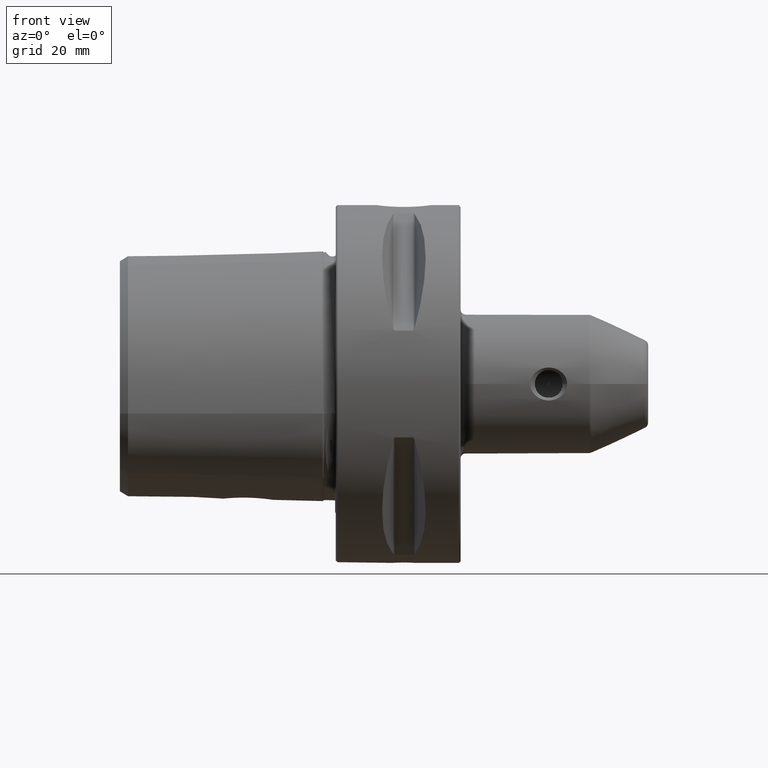
[diagram: clean part render]
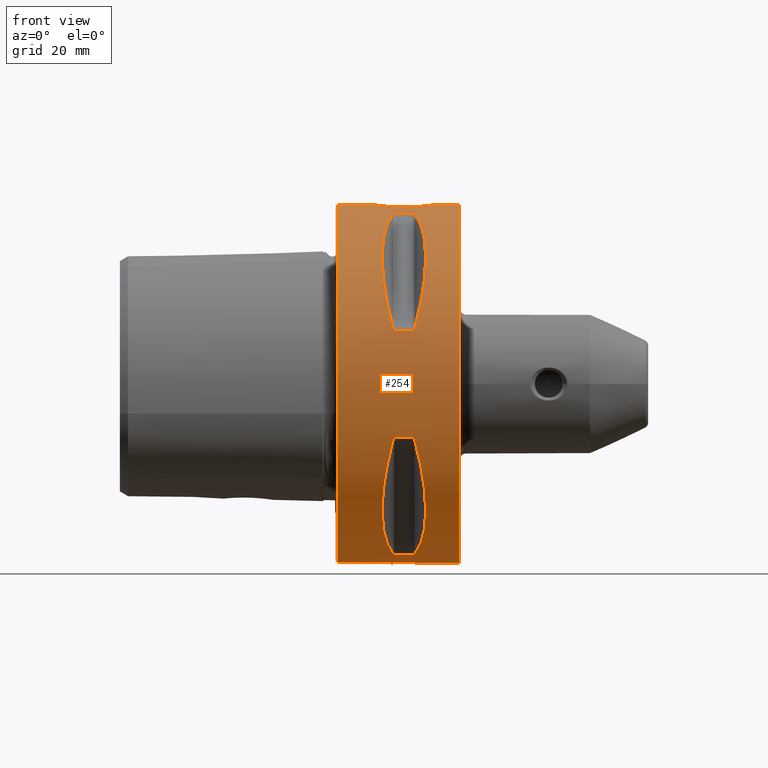
[diagram: same view with one face highlighted and labeled with its STEP entity id]
A machine part, front view. The second image highlights one B-rep face of the part: STEP entity #254.
In plain terms, the highlighted cylindrical surface (bore or boss wall) has radius 31.5 mm, axis along (1, -0, 0).
Its self-contained STEP definition (entity closure, byte-faithful):
#254 = ADVANCED_FACE( '', ( #573, #574, #575, #576, #577, #578, #579, #580 ), #581, .T. );
#573 = FACE_BOUND( '', #954, .T. );
#574 = FACE_BOUND( '', #955, .T. );
#575 = FACE_OUTER_BOUND( '', #956, .T. );
#576 = FACE_OUTER_BOUND( '', #957, .T. );
#577 = FACE_BOUND( '', #958, .T. );
#578 = FACE_BOUND( '', #959, .T. );
#579 = FACE_BOUND( '', #960, .T. );
#580 = FACE_BOUND( '', #961, .T. );
#581 = CYLINDRICAL_SURFACE( '', #962, 31.5000000000000 );
#954 = EDGE_LOOP( '', ( #1591 ) );
#955 = EDGE_LOOP( '', ( #1592 ) );
#956 = EDGE_LOOP( '', ( #1593 ) );
#957 = EDGE_LOOP( '', ( #1594 ) );
#958 = EDGE_LOOP( '', ( #1595, #1596, #1597, #1598, #1599, #1600, #1601, #1602 ) );
#959 = EDGE_LOOP( '', ( #1603, #1604, #1605, #1606, #1607, #1608, #1609, #1610 ) );
#960 = EDGE_LOOP( '', ( #1611, #1612, #1613, #1614, #1615, #1616, #1617, #1618 ) );
#961 = EDGE_LOOP( '', ( #1619, #1620, #1621, #1622, #1623, #1624, #1625, #1626 ) );
#962 = AXIS2_PLACEMENT_3D( '', #1627, #1628, #1629 );
#1591 = ORIENTED_EDGE( '', *, *, #2155, .F. );
#1592 = ORIENTED_EDGE( '', *, *, #2130, .F. );
#1593 = ORIENTED_EDGE( '', *, *, #2202, .T. );
#1594 = ORIENTED_EDGE( '', *, *, #2077, .T. );
#1595 = ORIENTED_EDGE( '', *, *, #2144, .T. );
#1596 = ORIENTED_EDGE( '', *, *, #2147, .F. );
#1597 = ORIENTED_EDGE( '', *, *, #2203, .F. );
#1598 = ORIENTED_EDGE( '', *, *, #2083, .F. );
#1599 = ORIENTED_EDGE( '', *, *, #2196, .T. );
#1600 = ORIENTED_EDGE( '', *, *, #2085, .T. );
#1601 = ORIENTED_EDGE( '', *, *, #2204, .T. );
#1602 = ORIENTED_EDGE( '', *, *, #2148, .T. );
#1603 = ORIENTED_EDGE( '', *, *, #2205, .T. );
#1604 = ORIENTED_EDGE( '', *, *, #2206, .F. );
#1605 = ORIENTED_EDGE( '', *, *, #2198, .F. );
#1606 = ORIENTED_EDGE( '', *, *, #2159, .F. );
#1607 = ORIENTED_EDGE( '', *, *, #2186, .T. );
#1608 = ORIENTED_EDGE( '', *, *, #2161, .T. );
#1609 = ORIENTED_EDGE( '', *, *, #2200, .T. );
#1610 = ORIENTED_EDGE( '', *, *, #2207, .T. );
#1611 = ORIENTED_EDGE( '', *, *, #2133, .T. );
#1612 = ORIENTED_EDGE( '', *, *, #2208, .F. );
#1613 = ORIENTED_EDGE( '', *, *, #1975, .F. );
#1614 = ORIENTED_EDGE( '', *, *, #2209, .F. );
#1615 = ORIENTED_EDGE( '', *, *, #2210, .T. );
#1616 = ORIENTED_EDGE( '', *, *, #2211, .T. );
#1617 = ORIENTED_EDGE( '', *, *, #1977, .T. );
#1618 = ORIENTED_EDGE( '', *, *, #2212, .T. );
#1619 = ORIENTED_EDGE( '', *, *, #2213, .T. );
#1620 = ORIENTED_EDGE( '', *, *, #2164, .F. );
#1621 = ORIENTED_EDGE( '', *, *, #2214, .F. );
#1622 = ORIENTED_EDGE( '', *, *, #2013, .F. );
#1623 = ORIENTED_EDGE( '', *, *, #2010, .T. );
#1624 = ORIENTED_EDGE( '', *, *, #2015, .T. );
#1625 = ORIENTED_EDGE( '', *, *, #2215, .T. );
#1626 = ORIENTED_EDGE( '', *, *, #2166, .T. );
#1627 = CARTESIAN_POINT( '', ( -0.100000000000003, 0.000000000000000, 5.40241950567483E-015 ) );
#1628 = DIRECTION( '', ( 1.00000000000000, -0.000000000000000, 6.95237284268055E-017 ) );
#1629 = DIRECTION( '', ( -6.95237284268055E-017, 0.000000000000000, 1.00000000000000 ) );
#1975 = EDGE_CURVE( '', #2295, #2297, #2298, .T. );
#1977 = EDGE_CURVE( '', #2294, #2299, #2301, .T. );
#2010 = EDGE_CURVE( '', #2358, #2359, #2360, .F. );
#2013 = EDGE_CURVE( '', #2358, #2363, #2364, .T. );
#2015 = EDGE_CURVE( '', #2359, #2365, #2367, .T. );
#2077 = EDGE_CURVE( '', #2471, #2471, #2472, .F. );
#2083 = EDGE_CURVE( '', #2480, #2482, #2483, .T. );
#2085 = EDGE_CURVE( '', #2479, #2484, #2486, .T. );
#2130 = EDGE_CURVE( '', #2540, #2540, #2541, .T. );
#2133 = EDGE_CURVE( '', #2543, #2544, #2546, .F. );
#2144 = EDGE_CURVE( '', #2560, #2561, #2563, .F. );
#2147 = EDGE_CURVE( '', #2566, #2561, #2568, .T. );
#2148 = EDGE_CURVE( '', #2565, #2560, #2569, .T. );
#2155 = EDGE_CURVE( '', #2579, #2579, #2580, .T. );
#2159 = EDGE_CURVE( '', #2583, #2585, #2586, .T. );
#2161 = EDGE_CURVE( '', #2582, #2587, #2589, .T. );
#2164 = EDGE_CURVE( '', #2592, #2594, #2595, .T. );
#2166 = EDGE_CURVE( '', #2591, #2596, #2598, .T. );
#2186 = EDGE_CURVE( '', #2583, #2582, #2625, .F. );
#2196 = EDGE_CURVE( '', #2480, #2479, #2638, .F. );
#2198 = EDGE_CURVE( '', #2585, #2640, #2641, .T. );
#2200 = EDGE_CURVE( '', #2587, #2642, #2644, .T. );
#2202 = EDGE_CURVE( '', #2646, #2646, #2647, .F. );
#2203 = EDGE_CURVE( '', #2482, #2566, #2648, .T. );
#2204 = EDGE_CURVE( '', #2484, #2565, #2649, .T. );
#2205 = EDGE_CURVE( '', #2650, #2651, #2652, .F. );
#2206 = EDGE_CURVE( '', #2640, #2651, #2653, .T. );
#2207 = EDGE_CURVE( '', #2642, #2650, #2654, .T. );
#2208 = EDGE_CURVE( '', #2297, #2544, #2655, .T. );
#2209 = EDGE_CURVE( '', #2656, #2295, #2657, .T. );
#2210 = EDGE_CURVE( '', #2656, #2658, #2659, .F. );
#2211 = EDGE_CURVE( '', #2658, #2294, #2660, .T. );
#2212 = EDGE_CURVE( '', #2299, #2543, #2661, .T. );
#2213 = EDGE_CURVE( '', #2596, #2594, #2662, .F. );
#2214 = EDGE_CURVE( '', #2363, #2592, #2663, .T. );
#2215 = EDGE_CURVE( '', #2365, #2591, #2664, .T. );
#2294 = VERTEX_POINT( '', #2755 );
#2295 = VERTEX_POINT( '', #2756 );
#2297 = VERTEX_POINT( '', #2759 );
#2298 = LINE( '', #2760, #2761 );
#2299 = VERTEX_POINT( '', #2762 );
#2301 = LINE( '', #2765, #2766 );
#2358 = VERTEX_POINT( '', #2921 );
#2359 = VERTEX_POINT( '', #2922 );
#2360 = ELLIPSE( '', #2923, 36.3730669589464, 31.5000000000000 );
#2363 = VERTEX_POINT( '', #2927 );
#2364 = B_SPLINE_CURVE_WITH_KNOTS( '', 3, ( #2928, #2929, #2930, #2931, #2932, #2933, #2934, #2935 ), .UNSPECIFIED., .F., .F., ( 4, 2, 2, 4 ), ( 3.35479553959893E-017, 0.000369746110240996, 0.000554619165361475, 0.000739492220481954 ), .UNSPECIFIED. );
#2365 = VERTEX_POINT( '', #2936 );
#2367 = B_SPLINE_CURVE_WITH_KNOTS( '', 3, ( #2939, #2940, #2941, #2942, #2943, #2944, #2945, #2946 ), .UNSPECIFIED., .F., .F., ( 4, 2, 2, 4 ), ( 3.50826111497558E-017, 0.000369746110241012, 0.000554619165361500, 0.000739492220481989 ), .UNSPECIFIED. );
#2471 = VERTEX_POINT( '', #3200 );
#2472 = CIRCLE( '', #3201, 31.5000000000000 );
#2479 = VERTEX_POINT( '', #3269 );
#2480 = VERTEX_POINT( '', #3270 );
#2482 = VERTEX_POINT( '', #3273 );
#2483 = B_SPLINE_CURVE_WITH_KNOTS( '', 3, ( #3274, #3275, #3276, #3277, #3278, #3279, #3280, #3281 ), .UNSPECIFIED., .F., .F., ( 4, 2, 2, 4 ), ( 3.50826111497558E-017, 0.000369746110241005, 0.000554619165361487, 0.000739492220481968 ), .UNSPECIFIED. );
#2484 = VERTEX_POINT( '', #3282 );
#2486 = B_SPLINE_CURVE_WITH_KNOTS( '', 3, ( #3285, #3286, #3287, #3288, #3289, #3290, #3291, #3292 ), .UNSPECIFIED., .F., .F., ( 4, 2, 2, 4 ), ( 5.86736719116179E-017, 0.000369746110241015, 0.000554619165361494, 0.000739492220481973 ), .UNSPECIFIED. );
#2540 = VERTEX_POINT( '', #3429 );
#2541 = B_SPLINE_CURVE_WITH_KNOTS( '', 3, ( #3430, #3431, #3432, #3433, #3434, #3435, #3436, #3437, #3438, #3439, #3440, #3441, #3442, #3443, #3444, #3445, #3446, #3447, #3448, #3449, #3450, #3451, #3452, #3453, #3454, #3455, #3456, #3457, #3458, #3459, #3460, #3461, #3462, #3463, #3464, #3465, #3466, #3467, #3468, #3469, #3470, #3471, #3472, #3473, #3474, #3475, #3476, #3477, #3478, #3479, #3480, #3481, #3482, #3483, #3484, #3485 ), .UNSPECIFIED., .T., .F., ( 2, 2, 2, 2, 2, 2, 2, 2, 2, 2, 2, 2, 2, 2, 2, 2, 2, 2, 2, 2, 2, 2, 2, 2, 2, 2, 2, 2, 2, 2 ), ( -0.000781720966296072, 0.000000000000000, 0.000390860483148034, 0.000781720966296067, 0.00117258144944410, 0.00156344193259213, 0.00234516289888820, 0.00312688386518427, 0.00351774434833230, 0.00390860483148034, 0.00429946531462838, 0.00469032579777641, 0.00508118628092445, 0.00547204676407248, 0.00586290724722052, 0.00625376773036855, 0.00703548869666462, 0.00781720966296070, 0.00820807014610873, 0.00859893062925677, 0.00898979111240481, 0.00938065159555284, 0.00977151207870088, 0.0101623725618489, 0.0105532330449970, 0.0109440935281450, 0.0113349540112930, 0.0117258144944411, 0.0125075354607371, 0.0128983959438852 ), .UNSPECIFIED. );
#2543 = VERTEX_POINT( '', #3487 );
#2544 = VERTEX_POINT( '', #3488 );
#2546 = ELLIPSE( '', #3491, 36.3730669589465, 31.5000000000000 );
#2560 = VERTEX_POINT( '', #3508 );
#2561 = VERTEX_POINT( '', #3509 );
#2563 = ELLIPSE( '', #3512, 36.3730669589465, 31.5000000000000 );
#2565 = VERTEX_POINT( '', #3514 );
#2566 = VERTEX_POINT( '', #3515 );
#2568 = B_SPLINE_CURVE_WITH_KNOTS( '', 3, ( #3518, #3519, #3520, #3521, #3522, #3523, #3524, #3525 ), .UNSPECIFIED., .F., .F., ( 4, 2, 2, 4 ), ( 1.73472347597681E-018, 0.000186192182164238, 0.000372384364328473, 0.000744768728656952 ), .UNSPECIFIED. );
#2569 = B_SPLINE_CURVE_WITH_KNOTS( '', 3, ( #3526, #3527, #3528, #3529, #3530, #3531, #3532, #3533 ), .UNSPECIFIED., .F., .F., ( 4, 2, 2, 4 ), ( 0.000000000000000, 0.000186192182164235, 0.000372384364328471, 0.000744768728656945 ), .UNSPECIFIED. );
#2579 = VERTEX_POINT( '', #3543 );
#2580 = B_SPLINE_CURVE_WITH_KNOTS( '', 3, ( #3544, #3545, #3546, #3547, #3548, #3549, #3550, #3551, #3552, #3553, #3554, #3555, #3556, #3557, #3558, #3559, #3560, #3561, #3562, #3563, #3564, #3565, #3566, #3567, #3568, #3569, #3570, #3571, #3572, #3573, #3574, #3575, #3576, #3577, #3578, #3579, #3580, #3581, #3582, #3583, #3584, #3585, #3586, #3587, #3588, #3589, #3590, #3591, #3592, #3593, #3594, #3595, #3596, #3597, #3598, #3599, #3600, #3601, #3602, #3603, #3604, #3605, #3606, #3607, #3608, #3609, #3610, #3611, #3612, #3613 ), .UNSPECIFIED., .T., .F., ( 2, 2, 2, 2, 2, 2, 2, 2, 2, 2, 2, 2, 2, 2, 2, 2, 2, 2, 2, 2, 2, 2, 2, 2, 2, 2, 2, 2, 2, 2, 2, 2, 2, 2, 2, 2, 2 ), ( -0.000912038958039935, 0.000000000000000, 0.000912038958039931, 0.00182407791607986, 0.00273611687411979, 0.00364815583215973, 0.00456019479019966, 0.00547223374823959, 0.00638427270627952, 0.00729631166431945, 0.00820835062235938, 0.00912038958039932, 0.0100324285384393, 0.0109444674964792, 0.0114004869754992, 0.0118565064545191, 0.0127685454125591, 0.0136805843705990, 0.0145926233286389, 0.0155046622866789, 0.0164167012447188, 0.0173287402027587, 0.0182407791607987, 0.0191528181188386, 0.0200648570768786, 0.0209768960349185, 0.0218889349929584, 0.0228009739509984, 0.0237130129090383, 0.0246250518670782, 0.0250810713460982, 0.0255370908251182, 0.0264491297831581, 0.0273611687411980, 0.0282732076992380, 0.0291852466572779, 0.0300972856153178 ), .UNSPECIFIED. );
#2582 = VERTEX_POINT( '', #3615 );
#2583 = VERTEX_POINT( '', #3616 );
#2585 = VERTEX_POINT( '', #3619 );
#2586 = B_SPLINE_CURVE_WITH_KNOTS( '', 3, ( #3620, #3621, #3622, #3623, #3624, #3625, #3626, #3627 ), .UNSPECIFIED., .F., .F., ( 4, 2, 2, 4 ), ( 3.20337251735390E-017, 0.000369746110240994, 0.000554619165361476, 0.000739492220481957 ), .UNSPECIFIED. );
#2587 = VERTEX_POINT( '', #3628 );
#2589 = B_SPLINE_CURVE_WITH_KNOTS( '', 3, ( #3631, #3632, #3633, #3634, #3635, #3636, #3637, #3638 ), .UNSPECIFIED., .F., .F., ( 4, 2, 2, 4 ), ( 2.57885184514585E-017, 0.000369746110241012, 0.000554619165361501, 0.000739492220481991 ), .UNSPECIFIED. );
#2591 = VERTEX_POINT( '', #3640 );
#2592 = VERTEX_POINT( '', #3641 );
#2594 = VERTEX_POINT( '', #3644 );
#2595 = B_SPLINE_CURVE_WITH_KNOTS( '', 3, ( #3645, #3646, #3647, #3648, #3649, #3650, #3651, #3652 ), .UNSPECIFIED., .F., .F., ( 4, 2, 2, 4 ), ( 5.48567729465110E-018, 0.000186192182164240, 0.000372384364328474, 0.000744768728656940 ), .UNSPECIFIED. );
#2596 = VERTEX_POINT( '', #3653 );
#2598 = B_SPLINE_CURVE_WITH_KNOTS( '', 3, ( #3656, #3657, #3658, #3659, #3660, #3661, #3662, #3663 ), .UNSPECIFIED., .F., .F., ( 4, 2, 2, 4 ), ( 1.73472347597681E-018, 0.000186192182164226, 0.000372384364328450, 0.000744768728656904 ), .UNSPECIFIED. );
#2625 = ELLIPSE( '', #3760, 36.3730669589464, 31.5000000000000 );
#2638 = ELLIPSE( '', #3776, 36.3730669589464, 31.5000000000000 );
#2640 = VERTEX_POINT( '', #3778 );
#2641 = LINE( '', #3779, #3780 );
#2642 = VERTEX_POINT( '', #3781 );
#2644 = LINE( '', #3784, #3785 );
#2646 = VERTEX_POINT( '', #3787 );
#2647 = CIRCLE( '', #3788, 31.5000000000000 );
#2648 = LINE( '', #3789, #3790 );
#2649 = LINE( '', #3791, #3792 );
#2650 = VERTEX_POINT( '', #3793 );
#2651 = VERTEX_POINT( '', #3794 );
#2652 = ELLIPSE( '', #3795, 36.3730669589465, 31.5000000000000 );
#2653 = B_SPLINE_CURVE_WITH_KNOTS( '', 3, ( #3796, #3797, #3798, #3799, #3800, #3801, #3802, #3803 ), .UNSPECIFIED., .F., .F., ( 4, 2, 2, 4 ), ( 5.20417042793042E-018, 0.000186192182164234, 0.000372384364328464, 0.000744768728656915 ), .UNSPECIFIED. );
#2654 = B_SPLINE_CURVE_WITH_KNOTS( '', 3, ( #3804, #3805, #3806, #3807, #3808, #3809, #3810, #3811 ), .UNSPECIFIED., .F., .F., ( 4, 2, 2, 4 ), ( 1.73472347597681E-018, 0.000186192182164216, 0.000372384364328429, 0.000744768728656857 ), .UNSPECIFIED. );
#2655 = B_SPLINE_CURVE_WITH_KNOTS( '', 3, ( #3812, #3813, #3814, #3815, #3816, #3817, #3818, #3819 ), .UNSPECIFIED., .F., .F., ( 4, 2, 2, 4 ), ( 1.73472347597681E-018, 0.000186192182164239, 0.000372384364328477, 0.000744768728656948 ), .UNSPECIFIED. );
#2656 = VERTEX_POINT( '', #3820 );
#2657 = B_SPLINE_CURVE_WITH_KNOTS( '', 3, ( #3821, #3822, #3823, #3824, #3825, #3826, #3827, #3828 ), .UNSPECIFIED., .F., .F., ( 4, 2, 2, 4 ), ( 9.96522768216898E-018, 0.000369746110240995, 0.000554619165361486, 0.000739492220481977 ), .UNSPECIFIED. );
#2658 = VERTEX_POINT( '', #3829 );
#2659 = ELLIPSE( '', #3830, 36.3730669589464, 31.5000000000000 );
#2660 = B_SPLINE_CURVE_WITH_KNOTS( '', 3, ( #3831, #3832, #3833, #3834, #3835, #3836, #3837, #3838 ), .UNSPECIFIED., .F., .F., ( 4, 2, 2, 4 ), ( 2.35947901993096E-017, 0.000369746110241009, 0.000554619165361500, 0.000739492220481990 ), .UNSPECIFIED. );
#2661 = B_SPLINE_CURVE_WITH_KNOTS( '', 3, ( #3839, #3840, #3841, #3842, #3843, #3844, #3845, #3846 ), .UNSPECIFIED., .F., .F., ( 4, 2, 2, 4 ), ( 5.20417042793042E-018, 0.000186192182164225, 0.000372384364328445, 0.000744768728656884 ), .UNSPECIFIED. );
#2662 = ELLIPSE( '', #3847, 36.3730669589465, 31.5000000000000 );
#2663 = LINE( '', #3848, #3849 );
#2664 = LINE( '', #3850, #3851 );
#2755 = CARTESIAN_POINT( '', ( 13.4722431864335, -30.0684919588732, 9.38806643133619 ) );
#2756 = CARTESIAN_POINT( '', ( 13.4722431864335, -9.38806643133620, 30.0684919588732 ) );
#2759 = CARTESIAN_POINT( '', ( 10.5277568135664, -9.38806643133619, 30.0684919588732 ) );
#2760 = CARTESIAN_POINT( '', ( -0.100000000000004, -9.38806643133620, 30.0684919588732 ) );
#2761 = VECTOR( '', #4020, 1000.00000000000 );
#2762 = CARTESIAN_POINT( '', ( 10.5277568135664, -30.0684919588732, 9.38806643133616 ) );
#2765 = CARTESIAN_POINT( '', ( -0.100000000000002, -30.0684919588732, 9.38806643133618 ) );
#2766 = VECTOR( '', #4022, 1000.00000000000 );
#2921 = CARTESIAN_POINT( '', ( 13.9052558883258, 9.90936932068531, -29.9007424601173 ) );
#2922 = CARTESIAN_POINT( '', ( 13.9052558883258, 29.9007424601173, -9.90936932068531 ) );
#2923 = AXIS2_PLACEMENT_3D( '', #4066, #4067, #4068 );
#2927 = CARTESIAN_POINT( '', ( 13.4722431864335, 9.38806643133622, -30.0684919588732 ) );
#2928 = CARTESIAN_POINT( '', ( 13.9052558883257, 9.90936932068534, -29.9007424601173 ) );
#2929 = CARTESIAN_POINT( '', ( 13.8741106903636, 9.79526395482004, -29.9385579830374 ) );
#2930 = CARTESIAN_POINT( '', ( 13.8318364240292, 9.68415762760126, -29.9746248411211 ) );
#2931 = CARTESIAN_POINT( '', ( 13.7318908902039, 9.53400002017098, -30.0225849061323 ) );
#2932 = CARTESIAN_POINT( '', ( 13.6921605854999, 9.48700732855364, -30.0374458800300 ) );
#2933 = CARTESIAN_POINT( '', ( 13.5952725354937, 9.41403174401515, -30.0603970261611 ) );
#2934 = CARTESIAN_POINT( '', ( 13.5352072937471, 9.38806643133613, -30.0684919588731 ) );
#2935 = CARTESIAN_POINT( '', ( 13.4722431864336, 9.38806643133613, -30.0684919588732 ) );
#2936 = CARTESIAN_POINT( '', ( 13.4722431864335, 30.0684919588732, -9.38806643133623 ) );
#2939 = CARTESIAN_POINT( '', ( 13.9052558883258, 29.9007424601173, -9.90936932068535 ) );
#2940 = CARTESIAN_POINT( '', ( 13.8741106903637, 29.9385579830375, -9.79526395482004 ) );
#2941 = CARTESIAN_POINT( '', ( 13.8318364240293, 29.9746248411211, -9.68415762760122 ) );
#2942 = CARTESIAN_POINT( '', ( 13.7318908902040, 30.0225849061324, -9.53400002017093 ) );
#2943 = CARTESIAN_POINT( '', ( 13.6921605854999, 30.0374458800300, -9.48700732855355 ) );
#2944 = CARTESIAN_POINT( '', ( 13.5952725354937, 30.0603970261612, -9.41403174401504 ) );
#2945 = CARTESIAN_POINT( '', ( 13.5352072937471, 30.0684919588732, -9.38806643133614 ) );
#2946 = CARTESIAN_POINT( '', ( 13.4722431864336, 30.0684919588732, -9.38806643133613 ) );
#3200 = CARTESIAN_POINT( '', ( 21.7000000000000, 0.000000000000000, -31.5000000000000 ) );
#3201 = AXIS2_PLACEMENT_3D( '', #4128, #4129, #4130 );
#3269 = CARTESIAN_POINT( '', ( 13.9052558883258, -9.90936932068533, -29.9007424601173 ) );
#3270 = CARTESIAN_POINT( '', ( 13.9052558883258, -29.9007424601173, -9.90936932068530 ) );
#3273 = CARTESIAN_POINT( '', ( 13.4722431864335, -30.0684919588732, -9.38806643133620 ) );
#3274 = CARTESIAN_POINT( '', ( 13.9052558883258, -29.9007424601173, -9.90936932068534 ) );
#3275 = CARTESIAN_POINT( '', ( 13.8741106903637, -29.9385579830375, -9.79526395482003 ) );
#3276 = CARTESIAN_POINT( '', ( 13.8318364240293, -29.9746248411211, -9.68415762760122 ) );
#3277 = CARTESIAN_POINT( '', ( 13.7318908902040, -30.0225849061324, -9.53400002017093 ) );
#3278 = CARTESIAN_POINT( '', ( 13.6921605854999, -30.0374458800300, -9.48700732855355 ) );
#3279 = CARTESIAN_POINT( '', ( 13.5952725354937, -30.0603970261612, -9.41403174401505 ) );
#3280 = CARTESIAN_POINT( '', ( 13.5352072937471, -30.0684919588732, -9.38806643133614 ) );
#3281 = CARTESIAN_POINT( '', ( 13.4722431864335, -30.0684919588732, -9.38806643133614 ) );
#3282 = CARTESIAN_POINT( '', ( 13.4722431864335, -9.38806643133623, -30.0684919588732 ) );
#3285 = CARTESIAN_POINT( '', ( 13.9052558883258, -9.90936932068538, -29.9007424601173 ) );
#3286 = CARTESIAN_POINT( '', ( 13.8741106903637, -9.79526395482008, -29.9385579830374 ) );
#3287 = CARTESIAN_POINT( '', ( 13.8318364240292, -9.68415762760132, -29.9746248411211 ) );
#3288 = CARTESIAN_POINT( '', ( 13.7318908902038, -9.53400002017105, -30.0225849061323 ) );
#3289 = CARTESIAN_POINT( '', ( 13.6921605854998, -9.48700732855371, -30.0374458800300 ) );
#3290 = CARTESIAN_POINT( '', ( 13.5952725354936, -9.41403174401524, -30.0603970261611 ) );
#3291 = CARTESIAN_POINT( '', ( 13.5352072937471, -9.38806643133613, -30.0684919588732 ) );
#3292 = CARTESIAN_POINT( '', ( 13.4722431864336, -9.38806643133612, -30.0684919588732 ) );
#3429 = CARTESIAN_POINT( '', ( 10.0000000000000, 0.000000000000000, -31.5000000000000 ) );
#3430 = CARTESIAN_POINT( '', ( 10.0000000000000, -0.264330525086719, -31.5000000000000 ) );
#3431 = CARTESIAN_POINT( '', ( 10.0000000000000, 0.132165262543358, -31.5000000000000 ) );
#3432 = CARTESIAN_POINT( '', ( 10.0129718584888, 0.262115323547486, -31.4991688408924 ) );
#3433 = CARTESIAN_POINT( '', ( 10.0637920281812, 0.517768256907586, -31.4960038440121 ) );
#3434 = CARTESIAN_POINT( '', ( 10.1022593516481, 0.644797763456900, -31.4936328214275 ) );
#3435 = CARTESIAN_POINT( '', ( 10.2026575877202, 0.886985894581409, -31.4877425114832 ) );
#3436 = CARTESIAN_POINT( '', ( 10.2640906186934, 1.00184738713428, -31.4842520961179 ) );
#3437 = CARTESIAN_POINT( '', ( 10.4092254502383, 1.21922758295842, -31.4765835557159 ) );
#3438 = CARTESIAN_POINT( '', ( 10.4936805676462, 1.32212515015705, -31.4723768919532 ) );
#3439 = CARTESIAN_POINT( '', ( 10.7704000180045, 1.59879218916483, -31.4599420232010 ) );
#3440 = CARTESIAN_POINT( '', ( 10.9934769099226, 1.74779027964481, -31.4516329411247 ) );
#3441 = CARTESIAN_POINT( '', ( 11.4747602721429, 1.94730142010950, -31.4399109843539 ) );
#3442 = CARTESIAN_POINT( '', ( 11.7379906911339, 1.99985952310620, -31.4364527564351 ) );
#3443 = CARTESIAN_POINT( '', ( 12.1293928928218, 2.00006980548429, -31.4364393781822 ) );
#3444 = CARTESIAN_POINT( '', ( 12.2619159209307, 1.98708403475715, -31.4372732678160 ) );
#3445 = CARTESIAN_POINT( '', ( 12.5184463741717, 1.93605688654334, -31.4404570133545 ) );
#3446 = CARTESIAN_POINT( '', ( 12.6431332084683, 1.89830168739295, -31.4427887803439 ) );
#3447 = CARTESIAN_POINT( '', ( 12.8853124707039, 1.79816335448421, -31.4486744415766 ) );
#3448 = CARTESIAN_POINT( '', ( 13.0024060028540, 1.73555768707267, -31.4522350729924 ) );
#3449 = CARTESIAN_POINT( '', ( 13.2191210062094, 1.59082439380772, -31.4598876240840 ) );
#3450 = CARTESIAN_POINT( '', ( 13.3201398330721, 1.50819704652814, -31.4640122144243 ) );
#3451 = CARTESIAN_POINT( '', ( 13.5069247205243, 1.32159199327658, -31.4724024752465 ) );
#3452 = CARTESIAN_POINT( '', ( 13.5897816017204, 1.22047692940040, -31.4765336768500 ) );
#3453 = CARTESIAN_POINT( '', ( 13.7346658667943, 1.00394412541055, -31.4841838458316 ) );
#3454 = CARTESIAN_POINT( '', ( 13.7973033746152, 0.887073917809438, -31.4877402430124 ) );
#3455 = CARTESIAN_POINT( '', ( 13.8977521980150, 0.644776047159272, -31.4936334771981 ) );
#3456 = CARTESIAN_POINT( '', ( 13.9356032990322, 0.520112048698297, -31.4959665157622 ) );
#3457 = CARTESIAN_POINT( '', ( 13.9868248642885, 0.263825004634441, -31.4991558565010 ) );
#3458 = CARTESIAN_POINT( '', ( 13.9999529909058, 0.131253008888845, -31.4999970152958 ) );
#3459 = CARTESIAN_POINT( '', ( 14.0000936312460, -0.260351183885144, -31.5000059448406 ) );
#3460 = CARTESIAN_POINT( '', ( 13.9477688818742, -0.523516515209088, -31.4965700744369 ) );
#3461 = CARTESIAN_POINT( '', ( 13.7486578198169, -1.00502188438222, -31.4848841034476 ) );
#3462 = CARTESIAN_POINT( '', ( 13.5997954833597, -1.22827342386633, -31.4765862105626 ) );
#3463 = CARTESIAN_POINT( '', ( 13.3234745240342, -1.50512972275520, -31.4641560873062 ) );
#3464 = CARTESIAN_POINT( '', ( 13.2207108756606, -1.58964316959889, -31.4599481230236 ) );
#3465 = CARTESIAN_POINT( '', ( 13.0033273182811, -1.73506044303915, -31.4522632980361 ) );
#3466 = CARTESIAN_POINT( '', ( 12.8885285503247, -1.79657164209754, -31.4487657247830 ) );
#3467 = CARTESIAN_POINT( '', ( 12.6466518269007, -1.89710149035236, -31.4428615302866 ) );
#3468 = CARTESIAN_POINT( '', ( 12.5194982189004, -1.93574651357036, -31.4404761360024 ) );
#3469 = CARTESIAN_POINT( '', ( 12.2638322094678, -1.98680284112135, -31.4372910520904 ) );
#3470 = CARTESIAN_POINT( '', ( 12.1339661717118, -1.99986769966698, -31.4364522362359 ) );
#3471 = CARTESIAN_POINT( '', ( 11.8700136449802, -2.00013032046492, -31.4364355281967 ) );
#3472 = CARTESIAN_POINT( '', ( 11.7396093215561, -1.98725332022088, -31.4372623882653 ) );
#3473 = CARTESIAN_POINT( '', ( 11.4839585581768, -1.93666731641508, -31.4404192391403 ) );
#3474 = CARTESIAN_POINT( '', ( 11.3570930090624, -1.89839095179325, -31.4427834970009 ) );
#3475 = CARTESIAN_POINT( '', ( 11.1145725511165, -1.79812008431322, -31.4486770215778 ) );
#3476 = CARTESIAN_POINT( '', ( 10.9996459124562, -1.73676406017233, -31.4521686119605 ) );
#3477 = CARTESIAN_POINT( '', ( 10.7822744436242, -1.59191776499954, -31.4598324475096 ) );
#3478 = CARTESIAN_POINT( '', ( 10.6792606309620, -1.50754025050489, -31.4640404447016 ) );
#3479 = CARTESIAN_POINT( '', ( 10.4945600853800, -1.32313293031663, -31.4723344854083 ) );
#3480 = CARTESIAN_POINT( '', ( 10.4117303511234, -1.22255986704718, -31.4764557713809 ) );
#3481 = CARTESIAN_POINT( '', ( 10.2654779125259, -1.00433372646820, -31.4841743471556 ) );
#3482 = CARTESIAN_POINT( '', ( 10.2031094317335, -0.887778616546939, -31.4877170618923 ) );
#3483 = CARTESIAN_POINT( '', ( 10.0531532801668, -0.526929022513174, -31.4965117492773 ) );
#3484 = CARTESIAN_POINT( '', ( 10.0000000000000, -0.264330525086719, -31.5000000000000 ) );
#3485 = CARTESIAN_POINT( '', ( 10.0000000000000, 0.132165262543358, -31.5000000000000 ) );
#3487 = CARTESIAN_POINT( '', ( 10.0947441116742, -29.9007424601173, 9.90936932068533 ) );
#3488 = CARTESIAN_POINT( '', ( 10.0947441116742, -9.90936932068536, 29.9007424601173 ) );
#3491 = AXIS2_PLACEMENT_3D( '', #4190, #4191, #4192 );
#3508 = CARTESIAN_POINT( '', ( 10.0947441116742, -9.90936932068534, -29.9007424601173 ) );
#3509 = CARTESIAN_POINT( '', ( 10.0947441116742, -29.9007424601173, -9.90936932068536 ) );
#3512 = AXIS2_PLACEMENT_3D( '', #4203, #4204, #4205 );
#3514 = CARTESIAN_POINT( '', ( 10.5277568135664, -9.38806643133624, -30.0684919588732 ) );
#3515 = CARTESIAN_POINT( '', ( 10.5277568135664, -30.0684919588732, -9.38806643133620 ) );
#3518 = CARTESIAN_POINT( '', ( 10.5277568135664, -30.0684919588732, -9.38806643133621 ) );
#3519 = CARTESIAN_POINT( '', ( 10.4646998586686, -30.0684919588732, -9.38806643133621 ) );
#3520 = CARTESIAN_POINT( '', ( 10.4055697089230, -30.0605916277936, -9.41341278471681 ) );
#3521 = CARTESIAN_POINT( '', ( 10.3071221583897, -30.0372808797886, -9.48753216685632 ) );
#3522 = CARTESIAN_POINT( '', ( 10.2680899202016, -30.0225757535049, -9.53402868155438 ) );
#3523 = CARTESIAN_POINT( '', ( 10.1682000357447, -29.9746422253182, -9.68410318856298 ) );
#3524 = CARTESIAN_POINT( '', ( 10.1259010621354, -29.9385722525535, -9.79522089767785 ) );
#3525 = CARTESIAN_POINT( '', ( 10.0947441116742, -29.9007424601173, -9.90936932068534 ) );
#3526 = CARTESIAN_POINT( '', ( 10.5277568135664, -9.38806643133624, -30.0684919588732 ) );
#3527 = CARTESIAN_POINT( '', ( 10.4646998586686, -9.38806643133624, -30.0684919588732 ) );
#3528 = CARTESIAN_POINT( '', ( 10.4055697089231, -9.41341278471702, -30.0605916277935 ) );
#3529 = CARTESIAN_POINT( '', ( 10.3071221583898, -9.48753216685650, -30.0372808797885 ) );
#3530 = CARTESIAN_POINT( '', ( 10.2680899202018, -9.53402868155446, -30.0225757535049 ) );
#3531 = CARTESIAN_POINT( '', ( 10.1682000357448, -9.68410318856302, -29.9746422253182 ) );
#3532 = CARTESIAN_POINT( '', ( 10.1259010621354, -9.79522089767787, -29.9385722525535 ) );
#3533 = CARTESIAN_POINT( '', ( 10.0947441116742, -9.90936932068535, -29.9007424601173 ) );
#3543 = CARTESIAN_POINT( '', ( 8.10635435873101, -2.63211129999641, 31.3898389627031 ) );
#3544 = CARTESIAN_POINT( '', ( 7.91807120252821, -2.38985798672490, 31.4101524687418 ) );
#3545 = CARTESIAN_POINT( '', ( 8.29463751493381, -2.87436461326791, 31.3695254566643 ) );
#3546 = CARTESIAN_POINT( '', ( 8.50437583353692, -3.09392275125733, 31.3483250414114 ) );
#3547 = CARTESIAN_POINT( '', ( 8.96387001187155, -3.49093982951788, 31.3065996237122 ) );
#3548 = CARTESIAN_POINT( '', ( 9.21601906998263, -3.66931229883829, 31.2859301160019 ) );
#3549 = CARTESIAN_POINT( '', ( 9.74228076708420, -3.97218871004634, 31.2489198664776 ) );
#3550 = CARTESIAN_POINT( '', ( 10.0177359421491, -4.09840982941764, 31.2324110136011 ) );
#3551 = CARTESIAN_POINT( '', ( 10.5930520556779, -4.30114020794293, 31.2051382590111 ) );
#3552 = CARTESIAN_POINT( '', ( 10.8915950849189, -4.37653099573942, 31.1945237374639 ) );
#3553 = CARTESIAN_POINT( '', ( 11.4902878857030, -4.47221179327314, 31.1809502170793 ) );
#3554 = CARTESIAN_POINT( '', ( 11.7931464286035, -4.49354402878048, 31.1778462720825 ) );
#3555 = CARTESIAN_POINT( '', ( 12.4060984269796, -4.48164925191661, 31.1795583048733 ) );
#3556 = CARTESIAN_POINT( '', ( 12.7096217307586, -4.44831891187209, 31.1843881973653 ) );
#3557 = CARTESIAN_POINT( '', ( 13.3032902660040, -4.32935104120680, 31.2011270300881 ) );
#3558 = CARTESIAN_POINT( '', ( 13.5955676206452, -4.24336580163199, 31.2130882949360 ) );
#3559 = CARTESIAN_POINT( '', ( 14.1650430314341, -4.01700190088614, 31.2430269014097 ) );
#3560 = CARTESIAN_POINT( '', ( 14.4350449979901, -3.87966122492492, 31.2605916121528 ) );
#3561 = CARTESIAN_POINT( '', ( 14.9460562882638, -3.55722144876302, 31.2989222614205 ) );
#3562 = CARTESIAN_POINT( '', ( 15.1891230110756, -3.37016361128865, 31.3198985569240 ) );
#3563 = CARTESIAN_POINT( '', ( 15.6335851213432, -2.95252874632379, 31.3620251639622 ) );
#3564 = CARTESIAN_POINT( '', ( 15.8324861337956, -2.72510159712638, 31.3828760154749 ) );
#3565 = CARTESIAN_POINT( '', ( 16.1829952067616, -2.23232386112172, 31.4217729591505 ) );
#3566 = CARTESIAN_POINT( '', ( 16.3359535323465, -1.96320414481623, 31.4400018062363 ) );
#3567 = CARTESIAN_POINT( '', ( 16.5785046725087, -1.40584839467034, 31.4698502440283 ) );
#3568 = CARTESIAN_POINT( '', ( 16.6694448576667, -1.11732223767852, 31.4815960804162 ) );
#3569 = CARTESIAN_POINT( '', ( 16.7588318257293, -0.669225145381714, 31.4932447184013 ) );
#3570 = CARTESIAN_POINT( '', ( 16.7807757374676, -0.516270478207419, 31.4961376382066 ) );
#3571 = CARTESIAN_POINT( '', ( 16.8074386460651, -0.211519874954977, 31.4996584215452 ) );
#3572 = CARTESIAN_POINT( '', ( 16.8123313880201, -0.0595172381981300, 31.5003087631410 ) );
#3573 = CARTESIAN_POINT( '', ( 16.8022863222431, 0.395398692232279, 31.4989783607916 ) );
#3574 = CARTESIAN_POINT( '', ( 16.7623208169417, 0.699390342824148, 31.4936433008364 ) );
#3575 = CARTESIAN_POINT( '', ( 16.6164438922991, 1.29479381292843, 31.4747871191205 ) );
#3576 = CARTESIAN_POINT( '', ( 16.5125808888347, 1.58001967591923, 31.4615409078345 ) );
#3577 = CARTESIAN_POINT( '', ( 16.2461467588195, 2.12686061194107, 31.4293092894039 ) );
#3578 = CARTESIAN_POINT( '', ( 16.0820795227604, 2.38921910191096, 31.4101813018660 ) );
#3579 = CARTESIAN_POINT( '', ( 15.7101748863239, 2.86861182811345, 31.3700322523366 ) );
#3580 = CARTESIAN_POINT( '', ( 15.5009745607094, 3.08893335222805, 31.3488313465382 ) );
#3581 = CARTESIAN_POINT( '', ( 15.0371852439903, 3.49038952513205, 31.3066752787812 ) );
#3582 = CARTESIAN_POINT( '', ( 14.7894332475211, 3.66567313713808, 31.2863575855930 ) );
#3583 = CARTESIAN_POINT( '', ( 14.2642702027186, 3.96890836627766, 31.2493375434107 ) );
#3584 = CARTESIAN_POINT( '', ( 13.9838939104631, 4.09769800598273, 31.2325044208671 ) );
#3585 = CARTESIAN_POINT( '', ( 13.4093400714248, 4.30043380371530, 31.2052356255738 ) );
#3586 = CARTESIAN_POINT( '', ( 13.1155007246187, 4.37501705150324, 31.1947369297752 ) );
#3587 = CARTESIAN_POINT( '', ( 12.5149374737522, 4.47174890088126, 31.1810174318654 ) );
#3588 = CARTESIAN_POINT( '', ( 12.2061519745948, 4.49341145690541, 31.1778653460477 ) );
#3589 = CARTESIAN_POINT( '', ( 11.5986089932100, 4.48185877792574, 31.1795281547374 ) );
#3590 = CARTESIAN_POINT( '', ( 11.2972912036606, 4.44939586968399, 31.1842347379142 ) );
#3591 = CARTESIAN_POINT( '', ( 10.6996351693940, 4.33024060281550, 31.2010037677672 ) );
#3592 = CARTESIAN_POINT( '', ( 10.4035027359071, 4.24283352753463, 31.2131553363152 ) );
#3593 = CARTESIAN_POINT( '', ( 9.84050997102316, 4.01937060812325, 31.2427169482084 ) );
#3594 = CARTESIAN_POINT( '', ( 9.57044431114822, 3.88286788677689, 31.2602006857961 ) );
#3595 = CARTESIAN_POINT( '', ( 9.05427557667517, 3.55768496982112, 31.2988767785350 ) );
#3596 = CARTESIAN_POINT( '', ( 8.81112545124253, 3.37012606830907, 31.3198884012903 ) );
#3597 = CARTESIAN_POINT( '', ( 8.37060135913974, 2.95673082824578, 31.3616151050114 ) );
#3598 = CARTESIAN_POINT( '', ( 8.17067313841939, 2.72941974567074, 31.3825283369438 ) );
#3599 = CARTESIAN_POINT( '', ( 7.81505727113715, 2.22970888180262, 31.4219861763949 ) );
#3600 = CARTESIAN_POINT( '', ( 7.66512517908048, 1.96504734588946, 31.4398737435307 ) );
#3601 = CARTESIAN_POINT( '', ( 7.48375120931628, 1.54921767743357, 31.4621867105278 ) );
#3602 = CARTESIAN_POINT( '', ( 7.43047575935615, 1.40727036125858, 31.4688857834841 ) );
#3603 = CARTESIAN_POINT( '', ( 7.33886828275630, 1.11642103557790, 31.4805461578252 ) );
#3604 = CARTESIAN_POINT( '', ( 7.30042816888181, 0.966631272371671, 31.4855218554886 ) );
#3605 = CARTESIAN_POINT( '', ( 7.21096860074216, 0.517157322556226, 31.4971808011515 ) );
#3606 = CARTESIAN_POINT( '', ( 7.18443150137654, 0.215080498790331, 31.5007375072029 ) );
#3607 = CARTESIAN_POINT( '', ( 7.19748501069943, -0.393926468028410, 31.4990086360896 ) );
#3608 = CARTESIAN_POINT( '', ( 7.23826761250514, -0.701656495916847, 31.4935674453850 ) );
#3609 = CARTESIAN_POINT( '', ( 7.38275434462185, -1.29165672872189, 31.4748905505710 ) );
#3610 = CARTESIAN_POINT( '', ( 7.48692230585123, -1.57928421027693, 31.4615982190329 ) );
#3611 = CARTESIAN_POINT( '', ( 7.75590142058693, -2.13077854028731, 31.4290643183174 ) );
#3612 = CARTESIAN_POINT( '', ( 7.91807120252821, -2.38985798672490, 31.4101524687418 ) );
#3613 = CARTESIAN_POINT( '', ( 8.29463751493381, -2.87436461326791, 31.3695254566643 ) );
#3615 = CARTESIAN_POINT( '', ( 13.9052558883258, 9.90936932068530, 29.9007424601173 ) );
#3616 = CARTESIAN_POINT( '', ( 13.9052558883258, 29.9007424601174, 9.90936932068530 ) );
#3619 = CARTESIAN_POINT( '', ( 13.4722431864335, 30.0684919588732, 9.38806643133619 ) );
#3620 = CARTESIAN_POINT( '', ( 13.9052558883258, 29.9007424601173, 9.90936932068532 ) );
#3621 = CARTESIAN_POINT( '', ( 13.8741106903637, 29.9385579830375, 9.79526395482002 ) );
#3622 = CARTESIAN_POINT( '', ( 13.8318364240292, 29.9746248411211, 9.68415762760124 ) );
#3623 = CARTESIAN_POINT( '', ( 13.7318908902039, 30.0225849061323, 9.53400002017096 ) );
#3624 = CARTESIAN_POINT( '', ( 13.6921605854998, 30.0374458800300, 9.48700732855361 ) );
#3625 = CARTESIAN_POINT( '', ( 13.5952725354937, 30.0603970261611, 9.41403174401512 ) );
#3626 = CARTESIAN_POINT( '', ( 13.5352072937471, 30.0684919588732, 9.38806643133610 ) );
#3627 = CARTESIAN_POINT( '', ( 13.4722431864336, 30.0684919588732, 9.38806643133610 ) );
#3628 = CARTESIAN_POINT( '', ( 13.4722431864335, 9.38806643133620, 30.0684919588732 ) );
#3631 = CARTESIAN_POINT( '', ( 13.9052558883258, 9.90936932068533, 29.9007424601173 ) );
#3632 = CARTESIAN_POINT( '', ( 13.8741106903637, 9.79526395482002, 29.9385579830375 ) );
#3633 = CARTESIAN_POINT( '', ( 13.8318364240292, 9.68415762760122, 29.9746248411211 ) );
#3634 = CARTESIAN_POINT( '', ( 13.7318908902040, 9.53400002017092, 30.0225849061324 ) );
#3635 = CARTESIAN_POINT( '', ( 13.6921605854999, 9.48700732855355, 30.0374458800300 ) );
#3636 = CARTESIAN_POINT( '', ( 13.5952725354937, 9.41403174401504, 30.0603970261612 ) );
#3637 = CARTESIAN_POINT( '', ( 13.5352072937471, 9.38806643133612, 30.0684919588732 ) );
#3638 = CARTESIAN_POINT( '', ( 13.4722431864336, 9.38806643133611, 30.0684919588732 ) );
#3640 = CARTESIAN_POINT( '', ( 10.5277568135664, 30.0684919588732, -9.38806643133622 ) );
#3641 = CARTESIAN_POINT( '', ( 10.5277568135664, 9.38806643133624, -30.0684919588731 ) );
#3644 = CARTESIAN_POINT( '', ( 10.0947441116742, 9.90936932068534, -29.9007424601173 ) );
#3645 = CARTESIAN_POINT( '', ( 10.5277568135664, 9.38806643133622, -30.0684919588732 ) );
#3646 = CARTESIAN_POINT( '', ( 10.4646998586686, 9.38806643133622, -30.0684919588732 ) );
#3647 = CARTESIAN_POINT( '', ( 10.4055697089231, 9.41341278471693, -30.0605916277936 ) );
#3648 = CARTESIAN_POINT( '', ( 10.3071221583898, 9.48753216685642, -30.0372808797885 ) );
#3649 = CARTESIAN_POINT( '', ( 10.2680899202017, 9.53402868155442, -30.0225757535049 ) );
#3650 = CARTESIAN_POINT( '', ( 10.1682000357447, 9.68410318856300, -29.9746422253183 ) );
#3651 = CARTESIAN_POINT( '', ( 10.1259010621354, 9.79522089767784, -29.9385722525535 ) );
#3652 = CARTESIAN_POINT( '', ( 10.0947441116742, 9.90936932068532, -29.9007424601173 ) );
#3653 = CARTESIAN_POINT( '', ( 10.0947441116742, 29.9007424601173, -9.90936932068535 ) );
#3656 = CARTESIAN_POINT( '', ( 10.5277568135664, 30.0684919588732, -9.38806643133623 ) );
#3657 = CARTESIAN_POINT( '', ( 10.4646998586686, 30.0684919588732, -9.38806643133623 ) );
#3658 = CARTESIAN_POINT( '', ( 10.4055697089230, 30.0605916277936, -9.41341278471681 ) );
#3659 = CARTESIAN_POINT( '', ( 10.3071221583897, 30.0372808797886, -9.48753216685632 ) );
#3660 = CARTESIAN_POINT( '', ( 10.2680899202016, 30.0225757535049, -9.53402868155438 ) );
#3661 = CARTESIAN_POINT( '', ( 10.1682000357447, 29.9746422253183, -9.68410318856297 ) );
#3662 = CARTESIAN_POINT( '', ( 10.1259010621354, 29.9385722525535, -9.79522089767784 ) );
#3663 = CARTESIAN_POINT( '', ( 10.0947441116742, 29.9007424601173, -9.90936932068533 ) );
#3760 = AXIS2_PLACEMENT_3D( '', #4240, #4241, #4242 );
#3776 = AXIS2_PLACEMENT_3D( '', #4255, #4256, #4257 );
#3778 = CARTESIAN_POINT( '', ( 10.5277568135664, 30.0684919588732, 9.38806643133623 ) );
#3779 = CARTESIAN_POINT( '', ( -0.100000000000002, 30.0684919588732, 9.38806643133623 ) );
#3780 = VECTOR( '', #4258, 1000.00000000000 );
#3781 = CARTESIAN_POINT( '', ( 10.5277568135664, 9.38806643133620, 30.0684919588732 ) );
#3784 = CARTESIAN_POINT( '', ( -0.100000000000004, 9.38806643133619, 30.0684919588732 ) );
#3785 = VECTOR( '', #4260, 1000.00000000000 );
#3787 = CARTESIAN_POINT( '', ( 0.299999999999991, 0.000000000000000, 31.5000000000000 ) );
#3788 = AXIS2_PLACEMENT_3D( '', #4261, #4262, #4263 );
#3789 = CARTESIAN_POINT( '', ( -0.100000000000004, -30.0684919588732, -9.38806643133620 ) );
#3790 = VECTOR( '', #4264, 1000.00000000000 );
#3791 = CARTESIAN_POINT( '', ( -0.100000000000002, -9.38806643133623, -30.0684919588731 ) );
#3792 = VECTOR( '', #4265, 1000.00000000000 );
#3793 = CARTESIAN_POINT( '', ( 10.0947441116742, 9.90936932068533, 29.9007424601173 ) );
#3794 = CARTESIAN_POINT( '', ( 10.0947441116742, 29.9007424601173, 9.90936932068532 ) );
#3795 = AXIS2_PLACEMENT_3D( '', #4266, #4267, #4268 );
#3796 = CARTESIAN_POINT( '', ( 10.5277568135664, 30.0684919588732, 9.38806643133620 ) );
#3797 = CARTESIAN_POINT( '', ( 10.4646998586686, 30.0684919588732, 9.38806643133620 ) );
#3798 = CARTESIAN_POINT( '', ( 10.4055697089231, 30.0605916277936, 9.41341278471690 ) );
#3799 = CARTESIAN_POINT( '', ( 10.3071221583898, 30.0372808797885, 9.48753216685639 ) );
#3800 = CARTESIAN_POINT( '', ( 10.2680899202017, 30.0225757535049, 9.53402868155440 ) );
#3801 = CARTESIAN_POINT( '', ( 10.1682000357447, 29.9746422253183, 9.68410318856298 ) );
#3802 = CARTESIAN_POINT( '', ( 10.1259010621354, 29.9385722525535, 9.79522089767782 ) );
#3803 = CARTESIAN_POINT( '', ( 10.0947441116742, 29.9007424601173, 9.90936932068530 ) );
#3804 = CARTESIAN_POINT( '', ( 10.5277568135664, 9.38806643133621, 30.0684919588732 ) );
#3805 = CARTESIAN_POINT( '', ( 10.4646998586686, 9.38806643133621, 30.0684919588732 ) );
#3806 = CARTESIAN_POINT( '', ( 10.4055697089230, 9.41341278471680, 30.0605916277936 ) );
#3807 = CARTESIAN_POINT( '', ( 10.3071221583897, 9.48753216685631, 30.0372808797886 ) );
#3808 = CARTESIAN_POINT( '', ( 10.2680899202016, 9.53402868155435, 30.0225757535049 ) );
#3809 = CARTESIAN_POINT( '', ( 10.1682000357447, 9.68410318856295, 29.9746422253183 ) );
#3810 = CARTESIAN_POINT( '', ( 10.1259010621354, 9.79522089767782, 29.9385722525535 ) );
#3811 = CARTESIAN_POINT( '', ( 10.0947441116742, 9.90936932068531, 29.9007424601173 ) );
#3812 = CARTESIAN_POINT( '', ( 10.5277568135664, -9.38806643133620, 30.0684919588732 ) );
#3813 = CARTESIAN_POINT( '', ( 10.4646998586686, -9.38806643133620, 30.0684919588732 ) );
#3814 = CARTESIAN_POINT( '', ( 10.4055697089231, -9.41341278471690, 30.0605916277936 ) );
#3815 = CARTESIAN_POINT( '', ( 10.3071221583898, -9.48753216685641, 30.0372808797886 ) );
#3816 = CARTESIAN_POINT( '', ( 10.2680899202017, -9.53402868155439, 30.0225757535049 ) );
#3817 = CARTESIAN_POINT( '', ( 10.1682000357447, -9.68410318856299, 29.9746422253183 ) );
#3818 = CARTESIAN_POINT( '', ( 10.1259010621354, -9.79522089767785, 29.9385722525535 ) );
#3819 = CARTESIAN_POINT( '', ( 10.0947441116741, -9.90936932068534, 29.9007424601173 ) );
#3820 = CARTESIAN_POINT( '', ( 13.9052558883258, -9.90936932068532, 29.9007424601173 ) );
#3821 = CARTESIAN_POINT( '', ( 13.9052558883258, -9.90936932068533, 29.9007424601173 ) );
#3822 = CARTESIAN_POINT( '', ( 13.8741106903637, -9.79526395482002, 29.9385579830375 ) );
#3823 = CARTESIAN_POINT( '', ( 13.8318364240292, -9.68415762760126, 29.9746248411211 ) );
#3824 = CARTESIAN_POINT( '', ( 13.7318908902039, -9.53400002017097, 30.0225849061324 ) );
#3825 = CARTESIAN_POINT( '', ( 13.6921605854999, -9.48700732855362, 30.0374458800300 ) );
#3826 = CARTESIAN_POINT( '', ( 13.5952725354936, -9.41403174401513, 30.0603970261611 ) );
#3827 = CARTESIAN_POINT( '', ( 13.5352072937471, -9.38806643133609, 30.0684919588732 ) );
#3828 = CARTESIAN_POINT( '', ( 13.4722431864336, -9.38806643133609, 30.0684919588732 ) );
#3829 = CARTESIAN_POINT( '', ( 13.9052558883258, -29.9007424601173, 9.90936932068533 ) );
#3830 = AXIS2_PLACEMENT_3D( '', #4269, #4270, #4271 );
#3831 = CARTESIAN_POINT( '', ( 13.9052558883258, -29.9007424601173, 9.90936932068532 ) );
#3832 = CARTESIAN_POINT( '', ( 13.8741106903637, -29.9385579830375, 9.79526395482001 ) );
#3833 = CARTESIAN_POINT( '', ( 13.8318364240292, -29.9746248411211, 9.68415762760121 ) );
#3834 = CARTESIAN_POINT( '', ( 13.7318908902040, -30.0225849061324, 9.53400002017092 ) );
#3835 = CARTESIAN_POINT( '', ( 13.6921605854999, -30.0374458800300, 9.48700732855355 ) );
#3836 = CARTESIAN_POINT( '', ( 13.5952725354937, -30.0603970261612, 9.41403174401505 ) );
#3837 = CARTESIAN_POINT( '', ( 13.5352072937471, -30.0684919588732, 9.38806643133609 ) );
#3838 = CARTESIAN_POINT( '', ( 13.4722431864336, -30.0684919588732, 9.38806643133608 ) );
#3839 = CARTESIAN_POINT( '', ( 10.5277568135664, -30.0684919588732, 9.38806643133619 ) );
#3840 = CARTESIAN_POINT( '', ( 10.4646998586686, -30.0684919588732, 9.38806643133619 ) );
#3841 = CARTESIAN_POINT( '', ( 10.4055697089230, -30.0605916277936, 9.41341278471680 ) );
#3842 = CARTESIAN_POINT( '', ( 10.3071221583897, -30.0372808797886, 9.48753216685631 ) );
#3843 = CARTESIAN_POINT( '', ( 10.2680899202016, -30.0225757535049, 9.53402868155436 ) );
#3844 = CARTESIAN_POINT( '', ( 10.1682000357447, -29.9746422253183, 9.68410318856295 ) );
#3845 = CARTESIAN_POINT( '', ( 10.1259010621354, -29.9385722525535, 9.79522089767782 ) );
#3846 = CARTESIAN_POINT( '', ( 10.0947441116742, -29.9007424601173, 9.90936932068531 ) );
#3847 = AXIS2_PLACEMENT_3D( '', #4272, #4273, #4274 );
#3848 = CARTESIAN_POINT( '', ( -0.100000000000002, 9.38806643133624, -30.0684919588731 ) );
#3849 = VECTOR( '', #4275, 1000.00000000000 );
#3850 = CARTESIAN_POINT( '', ( -0.100000000000004, 30.0684919588732, -9.38806643133622 ) );
#3851 = VECTOR( '', #4276, 1000.00000000000 );
#4020 = DIRECTION( '', ( -1.00000000000000, 0.000000000000000, -6.95237284268055E-017 ) );
#4022 = DIRECTION( '', ( -1.00000000000000, 0.000000000000000, -6.95237284268055E-017 ) );
#4066 = CARTESIAN_POINT( '', ( -2.34715418936220, 0.000000000000000, 5.24618896808045E-015 ) );
#4067 = DIRECTION( '', ( -0.866025403784439, 0.353553390593273, -0.353553390593273 ) );
#4068 = DIRECTION( '', ( -0.500000000000000, -0.612372435695795, 0.612372435695795 ) );
#4128 = CARTESIAN_POINT( '', ( 21.7000000000000, 0.000000000000000, 6.91803678537919E-015 ) );
#4129 = DIRECTION( '', ( 1.00000000000000, 0.000000000000000, 6.95237284268056E-017 ) );
#4130 = DIRECTION( '', ( 6.95237284268056E-017, 0.000000000000000, -1.00000000000000 ) );
#4190 = CARTESIAN_POINT( '', ( 26.3471541893622, 0.000000000000000, 7.24112427119789E-015 ) );
#4191 = DIRECTION( '', ( 0.866025403784439, -0.353553390593274, 0.353553390593274 ) );
#4192 = DIRECTION( '', ( -0.500000000000000, -0.612372435695794, 0.612372435695794 ) );
#4203 = CARTESIAN_POINT( '', ( 26.3471541893622, 0.000000000000000, 7.24112427119789E-015 ) );
#4204 = DIRECTION( '', ( 0.866025403784439, -0.353553390593274, -0.353553390593274 ) );
#4205 = DIRECTION( '', ( -0.500000000000000, -0.612372435695794, -0.612372435695794 ) );
#4240 = CARTESIAN_POINT( '', ( -2.34715418936220, 0.000000000000000, 5.24618896808045E-015 ) );
#4241 = DIRECTION( '', ( -0.866025403784439, 0.353553390593273, 0.353553390593273 ) );
#4242 = DIRECTION( '', ( -0.500000000000000, -0.612372435695795, -0.612372435695795 ) );
#4255 = CARTESIAN_POINT( '', ( -2.34715418936220, 0.000000000000000, 5.24618896808045E-015 ) );
#4256 = DIRECTION( '', ( -0.866025403784439, -0.353553390593273, -0.353553390593273 ) );
#4257 = DIRECTION( '', ( -0.500000000000000, 0.612372435695795, 0.612372435695795 ) );
#4258 = DIRECTION( '', ( -1.00000000000000, 0.000000000000000, -6.95237284268055E-017 ) );
#4260 = DIRECTION( '', ( -1.00000000000000, 0.000000000000000, -6.95237284268055E-017 ) );
#4261 = CARTESIAN_POINT( '', ( 0.299999999999993, 0.000000000000000, 5.43022899704555E-015 ) );
#4262 = DIRECTION( '', ( -1.00000000000000, 0.000000000000000, -6.95237284268060E-017 ) );
#4263 = DIRECTION( '', ( -6.95237284268060E-017, 0.000000000000000, 1.00000000000000 ) );
#4264 = DIRECTION( '', ( -1.00000000000000, 0.000000000000000, -6.95237284268055E-017 ) );
#4265 = DIRECTION( '', ( -1.00000000000000, 0.000000000000000, -6.95237284268055E-017 ) );
#4266 = CARTESIAN_POINT( '', ( 26.3471541893622, 0.000000000000000, 7.24112427119789E-015 ) );
#4267 = DIRECTION( '', ( 0.866025403784439, 0.353553390593274, 0.353553390593274 ) );
#4268 = DIRECTION( '', ( -0.500000000000000, 0.612372435695795, 0.612372435695794 ) );
#4269 = CARTESIAN_POINT( '', ( -2.34715418936220, 0.000000000000000, 5.24618896808045E-015 ) );
#4270 = DIRECTION( '', ( -0.866025403784439, -0.353553390593273, 0.353553390593273 ) );
#4271 = DIRECTION( '', ( -0.500000000000000, 0.612372435695795, -0.612372435695795 ) );
#4272 = CARTESIAN_POINT( '', ( 26.3471541893622, 0.000000000000000, 7.24112427119789E-015 ) );
#4273 = DIRECTION( '', ( 0.866025403784439, 0.353553390593273, -0.353553390593274 ) );
#4274 = DIRECTION( '', ( -0.500000000000000, 0.612372435695794, -0.612372435695795 ) );
#4275 = DIRECTION( '', ( -1.00000000000000, 0.000000000000000, -6.95237284268055E-017 ) );
#4276 = DIRECTION( '', ( -1.00000000000000, 0.000000000000000, -6.95237284268055E-017 ) );